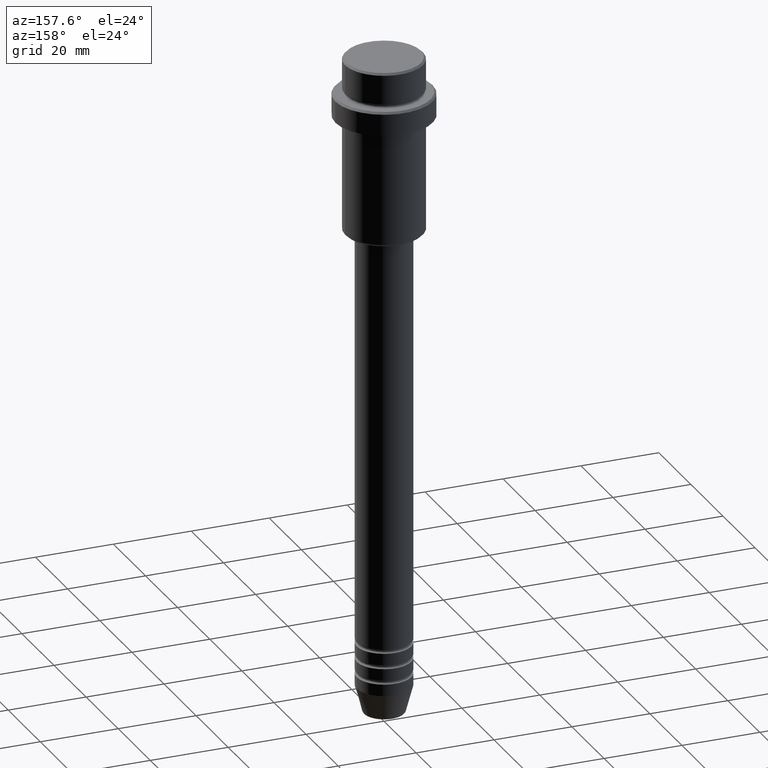
[diagram: clean part render]
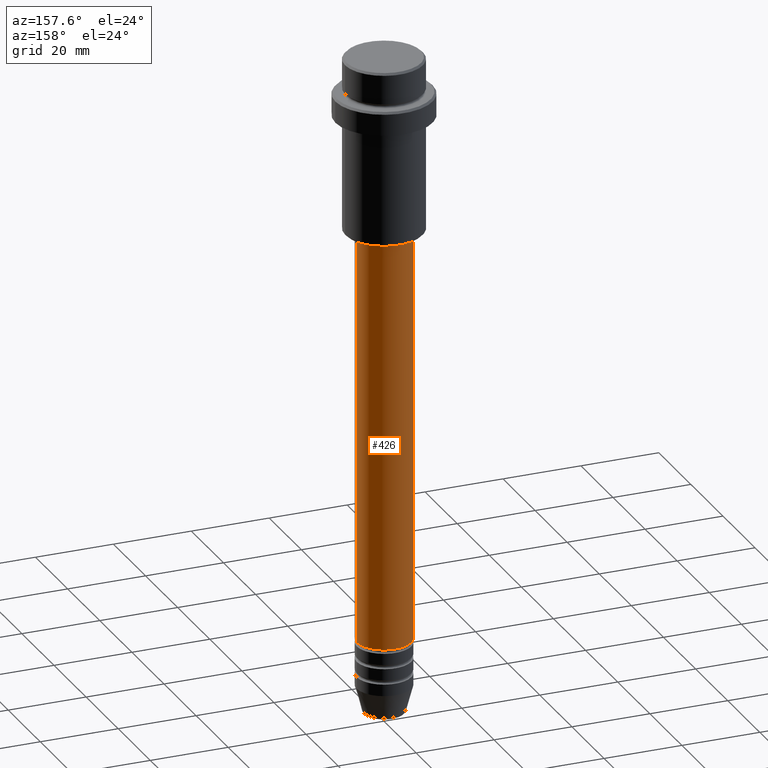
[diagram: same view with one face highlighted and labeled with its STEP entity id]
A machine part, auxiliary view. The second image highlights one B-rep face of the part: STEP entity #426.
In plain terms, the highlighted cylindrical surface (edge-blend (fillet) strip) has radius 7 mm, axis along (-0, -0, 1).
Its self-contained STEP definition (entity closure, byte-faithful):
#50 = LINE ( 'NONE', #703, #1261 ) ;
#78 = EDGE_CURVE ( 'NONE', #655, #615, #50, .T. ) ;
#79 = DIRECTION ( 'NONE',  ( -0.000000000000000000, -0.000000000000000000, 1.000000000000000000 ) ) ;
#111 = CIRCLE ( 'NONE', #560, 7.000000000000000000 ) ;
#116 = VERTEX_POINT ( 'NONE', #352 ) ;
#223 = EDGE_CURVE ( 'NONE', #250, #615, #111, .T. ) ;
#250 = VERTEX_POINT ( 'NONE', #386 ) ;
#279 = ORIENTED_EDGE ( 'NONE', *, *, #665, .T. ) ;
#314 = CARTESIAN_POINT ( 'NONE',  ( -7.000000000000000000, 8.572527594031473190E-16, -46.00000000000000000 ) ) ;
#328 = DIRECTION ( 'NONE',  ( -0.000000000000000000, -0.000000000000000000, 1.000000000000000000 ) ) ;
#352 = CARTESIAN_POINT ( 'NONE',  ( 7.000000000000000000, 0.000000000000000000, -150.9999999999999147 ) ) ;
#386 = CARTESIAN_POINT ( 'NONE',  ( 7.000000000000000000, 0.000000000000000000, -46.00000000000000000 ) ) ;
#414 = EDGE_CURVE ( 'NONE', #116, #250, #969, .T. ) ;
#415 = CARTESIAN_POINT ( 'NONE',  ( 7.000000000000000000, 0.000000000000000000, 0.000000000000000000 ) ) ;
#426 = ADVANCED_FACE ( 'NONE', ( #879 ), #1105, .T. ) ;
#486 = DIRECTION ( 'NONE',  ( -0.000000000000000000, -0.000000000000000000, 1.000000000000000000 ) ) ;
#560 = AXIS2_PLACEMENT_3D ( 'NONE', #1046, #1367, #1168 ) ;
#615 = VERTEX_POINT ( 'NONE', #314 ) ;
#620 = CARTESIAN_POINT ( 'NONE',  ( 0.000000000000000000, 0.000000000000000000, -150.9999999999999147 ) ) ;
#630 = VECTOR ( 'NONE', #636, 1000.000000000000000 ) ;
#636 = DIRECTION ( 'NONE',  ( -0.000000000000000000, -0.000000000000000000, 1.000000000000000000 ) ) ;
#655 = VERTEX_POINT ( 'NONE', #1285 ) ;
#665 = EDGE_CURVE ( 'NONE', #116, #655, #1023, .T. ) ;
#676 = AXIS2_PLACEMENT_3D ( 'NONE', #620, #79, #1074 ) ;
#703 = CARTESIAN_POINT ( 'NONE',  ( -7.000000000000000000, 8.572527594031473190E-16, 0.000000000000000000 ) ) ;
#765 = AXIS2_PLACEMENT_3D ( 'NONE', #1306, #328, #773 ) ;
#773 = DIRECTION ( 'NONE',  ( 1.000000000000000000, 0.000000000000000000, 0.000000000000000000 ) ) ;
#795 = ORIENTED_EDGE ( 'NONE', *, *, #223, .F. ) ;
#879 = FACE_OUTER_BOUND ( 'NONE', #898, .T. ) ;
#898 = EDGE_LOOP ( 'NONE', ( #279, #1140, #795, #1137 ) ) ;
#969 = LINE ( 'NONE', #415, #630 ) ;
#1023 = CIRCLE ( 'NONE', #676, 7.000000000000000000 ) ;
#1046 = CARTESIAN_POINT ( 'NONE',  ( 0.000000000000000000, 0.000000000000000000, -46.00000000000000000 ) ) ;
#1074 = DIRECTION ( 'NONE',  ( 1.000000000000000000, 0.000000000000000000, 0.000000000000000000 ) ) ;
#1105 = CYLINDRICAL_SURFACE ( 'NONE', #765, 7.000000000000000000 ) ;
#1137 = ORIENTED_EDGE ( 'NONE', *, *, #414, .F. ) ;
#1140 = ORIENTED_EDGE ( 'NONE', *, *, #78, .T. ) ;
#1168 = DIRECTION ( 'NONE',  ( 1.000000000000000000, 0.000000000000000000, 0.000000000000000000 ) ) ;
#1261 = VECTOR ( 'NONE', #486, 1000.000000000000000 ) ;
#1285 = CARTESIAN_POINT ( 'NONE',  ( -7.000000000000000000, 8.572527594031473190E-16, -150.9999999999999147 ) ) ;
#1306 = CARTESIAN_POINT ( 'NONE',  ( 0.000000000000000000, 0.000000000000000000, 0.000000000000000000 ) ) ;
#1367 = DIRECTION ( 'NONE',  ( -0.000000000000000000, -0.000000000000000000, 1.000000000000000000 ) ) ;